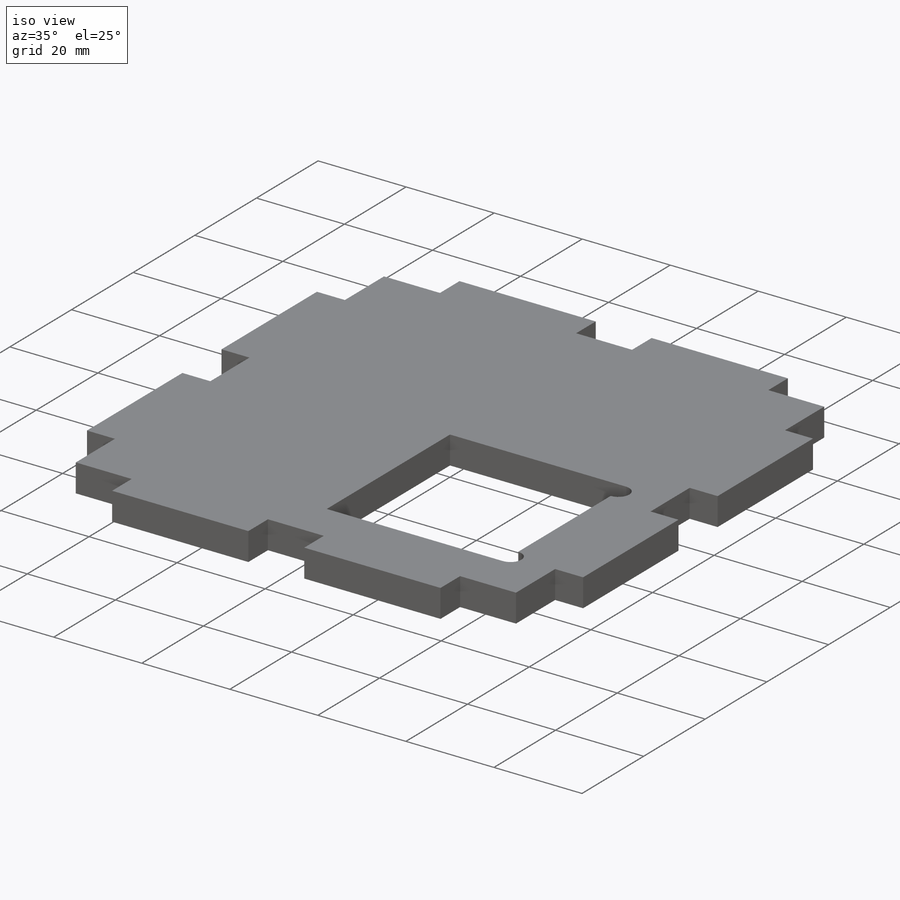
[diagram: iso view]
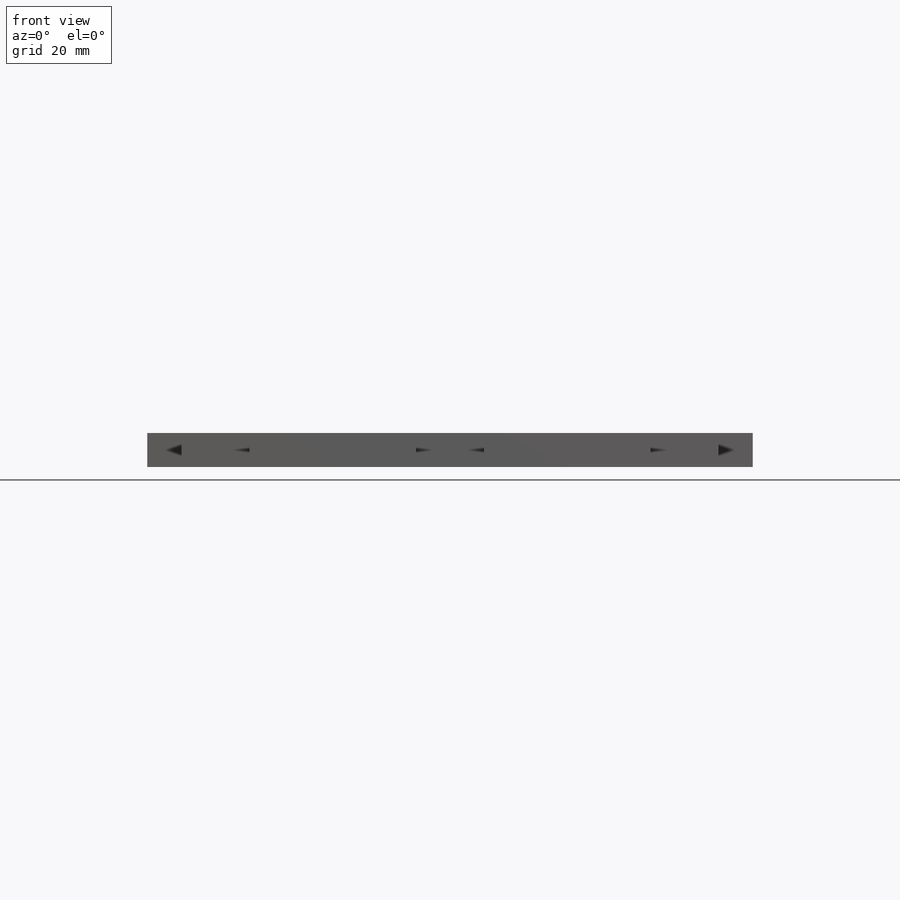
[diagram: front view]
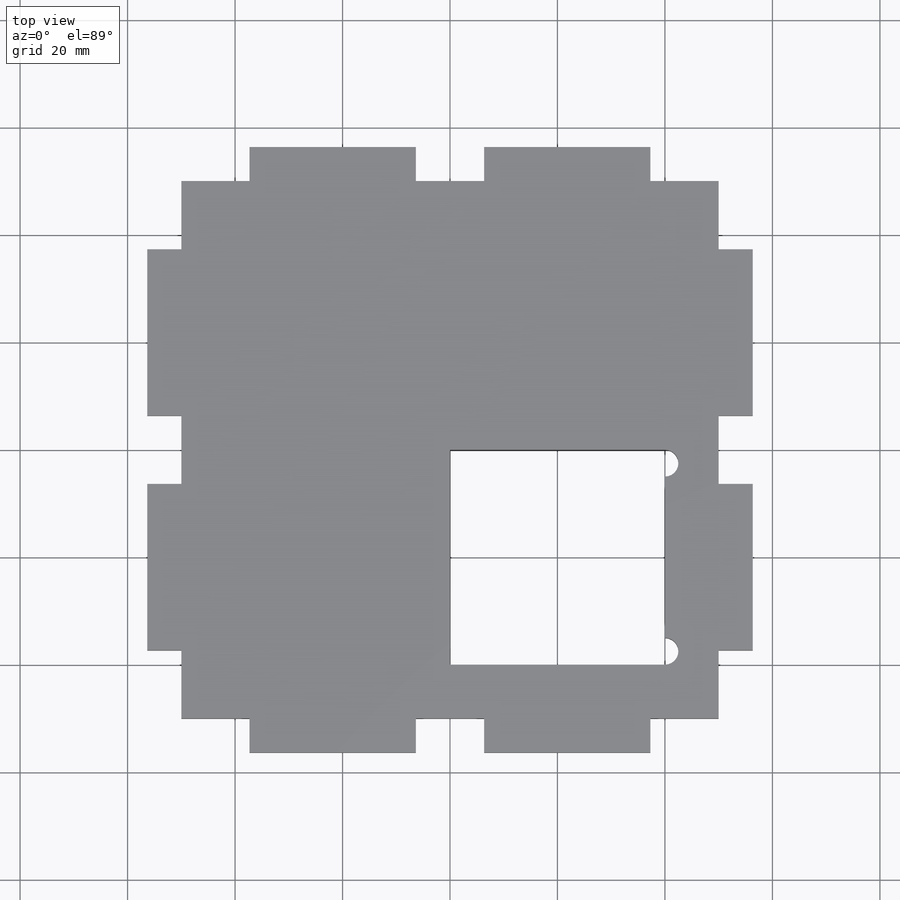
[diagram: top view]
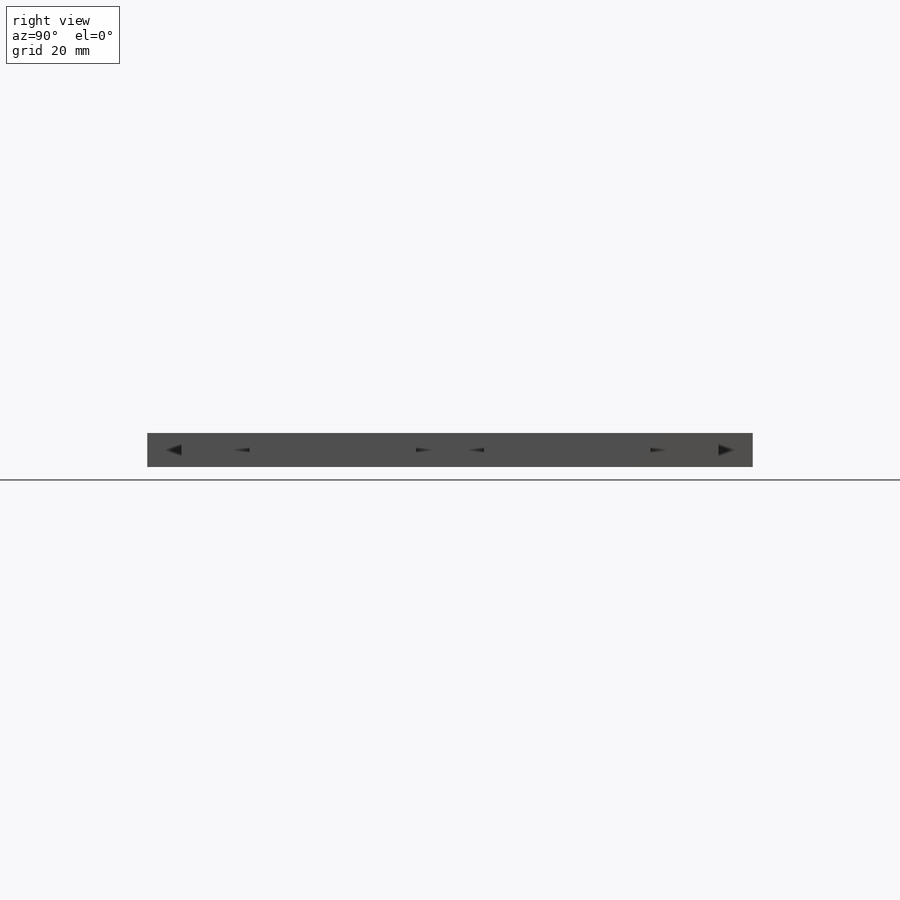
[diagram: right view]
SOLIDWORKS PART (.sldprt)
format: sldprt  version: not decoded by parser v0  size: 333,824 bytes
history: native  units: mm
features: sketch x7, cut_extrude x5, extrude x3, pattern_circular x3, material x1, plane x1, mirror x1 (+13 scaffold rows collapsed)
feature tree (34):
  scaffold x13  (default folders/planes/origin — collapsed)
  material  "Acrylic (Medium-high impact)"
  sketch  "Sketch1"  dims[D1=112.7mm D2=112.7mm]
  extrude  "Boss-Extrude1"  Depth=6.35mm
  sketch  "Sketch2"  dims[D1=6.35mm D2=12.7mm D3=56.35mm D4=3.175mm]
  cut_extrude  "Cut-Extrude2"  [1 undecoded]
  pattern_circular  "CirPattern1"  Count=4 Angle=90deg
  sketch  "Sketch4"  dims[D1=100.0mm D2=100.0mm]
  sketch  "Sketch5"  dims[c1.D1=~20.406703mm c1.D2=6.35mm c2.D1=19.05mm]
  cut_extrude  "Cut-Extrude3"  [1 undecoded]
  sketch  "Sketch6"  dims[c1.D1=6.35mm c1.D2=~11.147696mm c2.D1=12.7mm]
  cut_extrude  "Cut-Extrude4"  [1 undecoded]
  pattern_circular  "CirPattern2"  Count=4 Angle=90deg
  pattern_circular  "CirPattern3"  Count=4 Angle=90deg
  sketch  "Sketch7"  dims[c1.D1=~26.265422mm c1.D2=~26.265422mm c2.D1=40.0mm]
  cut_extrude  "Cut-Extrude5"  [1 undecoded]
  extrude  "Point3"  [1 undecoded]
  extrude  "Point4"  [1 undecoded]
  plane  "Plane1"
  sketch  "Sketch8"  dims[D1=2.5mm D2=5.0mm]
  cut_extrude  "Cut-Extrude6"  [1 undecoded]
  mirror  "Mirror1"
decode coverage: 11 of 19 modeling features carry decoded parameters
note: ~ marks probable driven/reference dimensions
note: 7 parameter values undecoded
summary: no parameter record found for 7 features
note: suppression state not decoded; provenance and decode notes live in map.json
